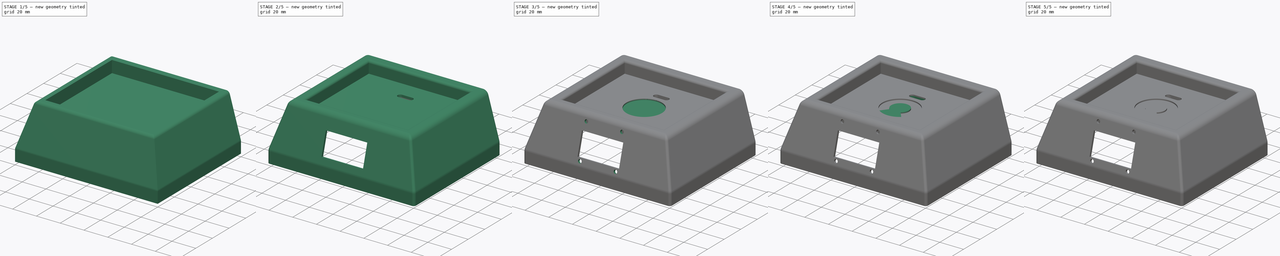
[diagram: build sequence overview — one tinted view per stage of 5, left to right]
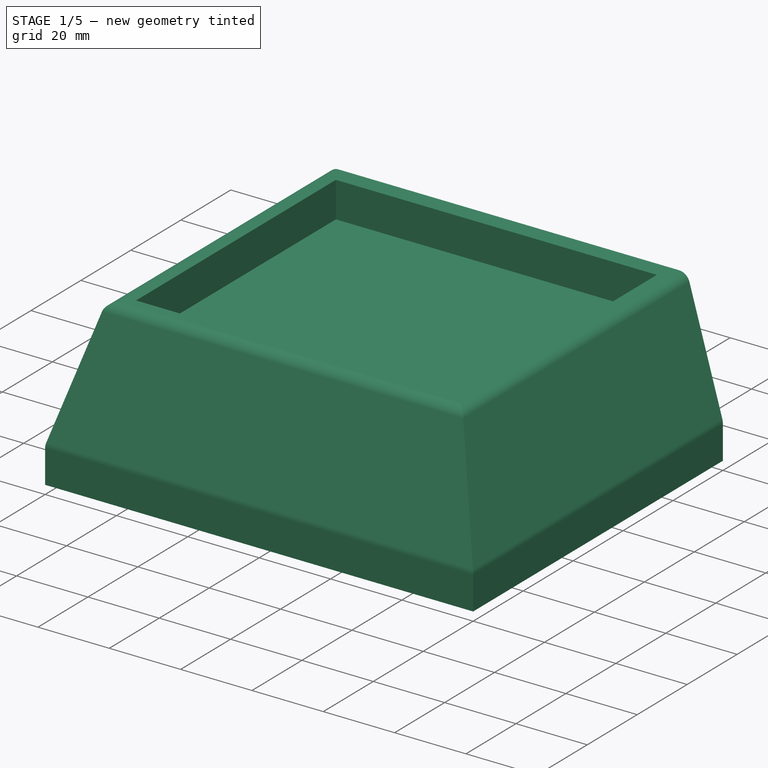
[diagram: stage 1 of 5 — iso view after this stage's code; geometry added in this stage tinted green]
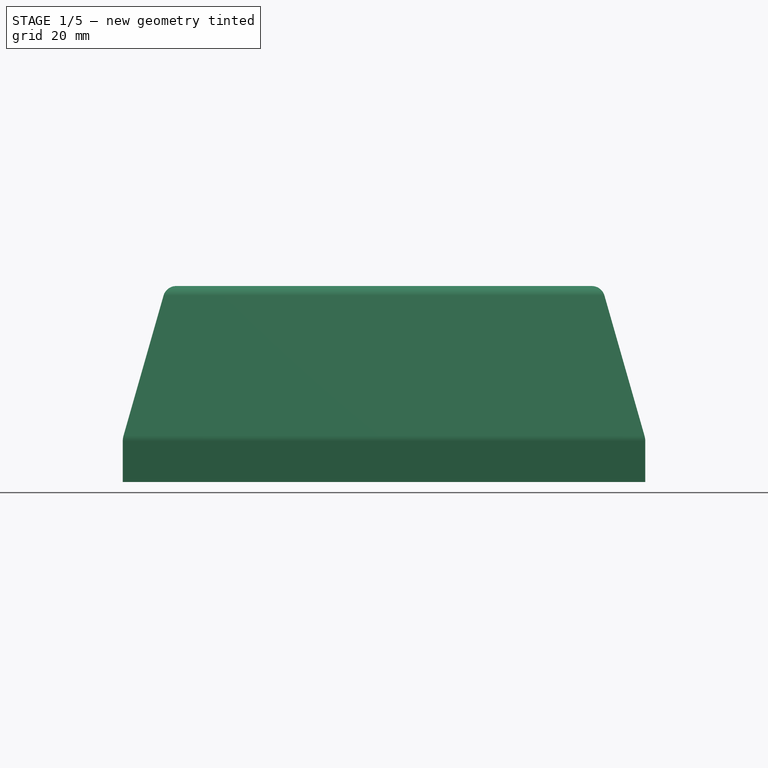
[diagram: stage 1 of 5 — front view after this stage's code; geometry added in this stage tinted green]
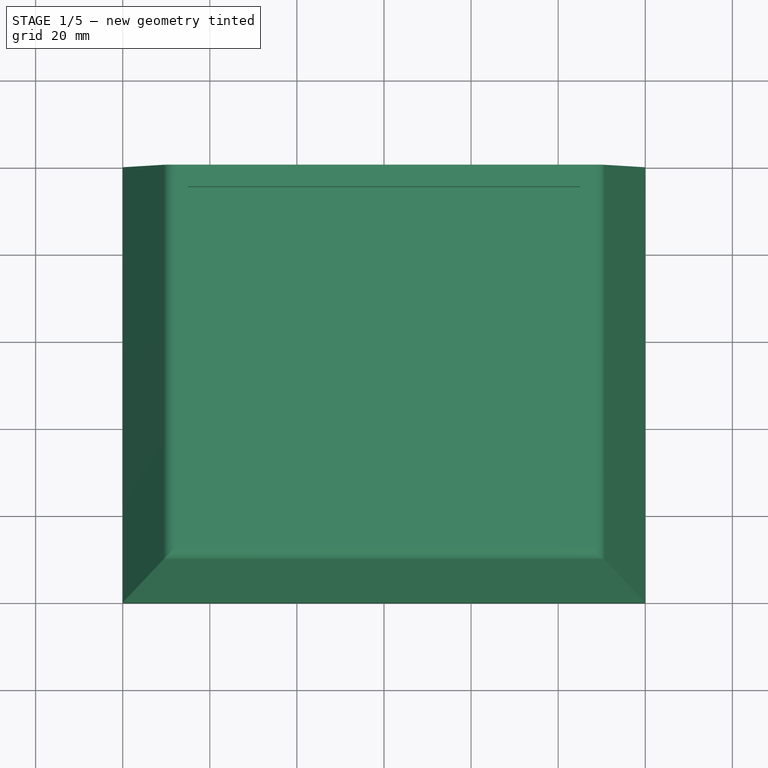
[diagram: stage 1 of 5 — top view after this stage's code; geometry added in this stage tinted green]
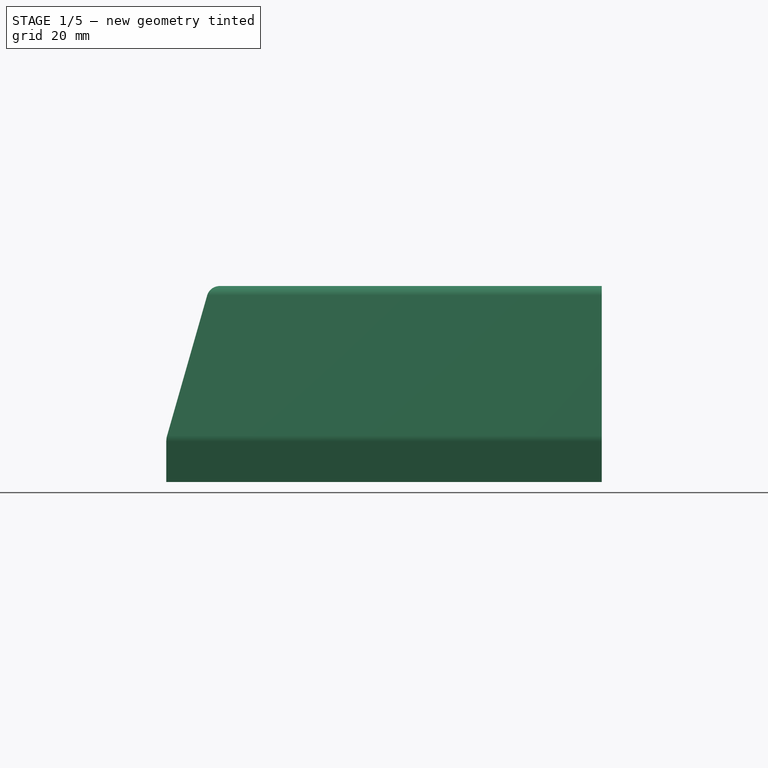
[diagram: stage 1 of 5 — right view after this stage's code; geometry added in this stage tinted green]
FCSTD DOCUMENT  (FreeCAD 0.19R24267 +148 (Git))
Label: top_base_v2
License: All rights reserved
LicenseURL: http://en.wikipedia.org/wiki/All_rights_reserved
objects: Sketcher::SketchObject×19, PartDesign::Pocket×13, PartDesign::Pad×6, PartDesign::Fillet×2, PartDesign::Chamfer×1, PartDesign::Thickness×1, PartDesign::Body×1
note: 66 computed .brp shape members not serialized (recipe doc carries the construction recipe); baked Part::Feature solids carry a one-line shape summary decoded from their .brp

FEATURE [Sketcher::SketchObject] Sketch
  FullyConstrained = true
  MapMode = 5
  Support = -> [XY_Plane]
  sketch-geometry (4):
    g0: LineSegment StartX=0 StartY=0 StartZ=0 EndX=120 EndY=0 EndZ=0
    g1: LineSegment StartX=120 StartY=0 StartZ=0 EndX=120 EndY=-100 EndZ=0
    g2: LineSegment StartX=120 StartY=-100 StartZ=0 EndX=0 EndY=-100 EndZ=0
    g3: LineSegment StartX=0 StartY=-100 StartZ=0 EndX=0 EndY=0 EndZ=0
  constraints (11):
    c: Coincident(g0,g1)
    c: Coincident(g1,g2)
    c: Coincident(g2,g3)
    c: Coincident(g3,g0)
    c: Horizontal(g0)
    c: Horizontal(g2)
    c: Vertical(g1)
    c: Vertical(g3)
    c: Coincident(g0,g-1)
    c: DistanceX(g0,g0) = 120
    c: DistanceY(g3,g3) = 100
FEATURE [PartDesign::Pad] Pad
  Direction = (1,1,1)
  Length = 45
  Length2 = 100
  Profile = -> Sketch
  Type = 0
FEATURE [PartDesign::Chamfer] Chamfer
  Angle = 45
  Base = -> Pad [Edge7,Edge12,Edge10]
  BaseFeature = -> Pad
  ChamferType = 1
  FlipDirection = false
  Size = 35
  Size2 = 10
  SupportTransform = false
FEATURE [Sketcher::SketchObject] Sketch001
  FullyConstrained = false
  MapMode = 5
  Placement = pos=(0,0,45) rot=(0,0,1;0rad)
  Support = -> [Chamfer]
  sketch-geometry (4):
    g0: LineSegment StartX=15 StartY=-5 StartZ=0 EndX=105 EndY=-5 EndZ=0
    g1: LineSegment StartX=105 StartY=-5 StartZ=0 EndX=105 EndY=-85 EndZ=0
    g2: LineSegment StartX=105 StartY=-85 StartZ=0 EndX=15 EndY=-85 EndZ=0
    g3: LineSegment StartX=15 StartY=-85 StartZ=0 EndX=15 EndY=-5 EndZ=0
  constraints (10):
    c: Coincident(g0,g1)
    c: Coincident(g1,g2)
    c: Coincident(g2,g3)
    c: Coincident(g3,g0)
    c: Horizontal(g0)
    c: Horizontal(g2)
    c: Vertical(g1)
    c: Vertical(g3)
    c: DistanceX(g0,g0) = 90
    c: DistanceY(g1,g1) = 80
FEATURE [PartDesign::Pocket] Pocket
  BaseFeature = -> Chamfer
  Length = 10
  Length2 = 100
  Profile = -> Sketch001
  Type = 0
FEATURE [PartDesign::Fillet] Fillet
  Base = -> Pocket [Edge8,Edge23,Edge20]
  BaseFeature = -> Pocket
  Radius = 5
  SupportTransform = false
FEATURE [PartDesign::Fillet] Fillet001
  Base = -> Fillet [Edge21,Edge17,Edge20]
  BaseFeature = -> Fillet
  Radius = 3
  SupportTransform = false
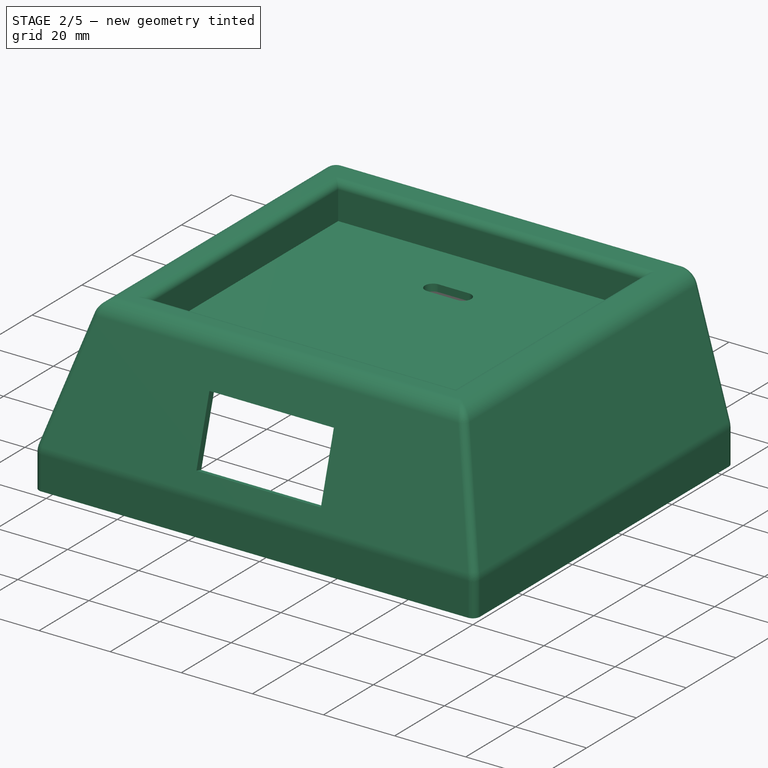
[diagram: stage 2 of 5 — iso view after this stage's code; geometry added in this stage tinted green]
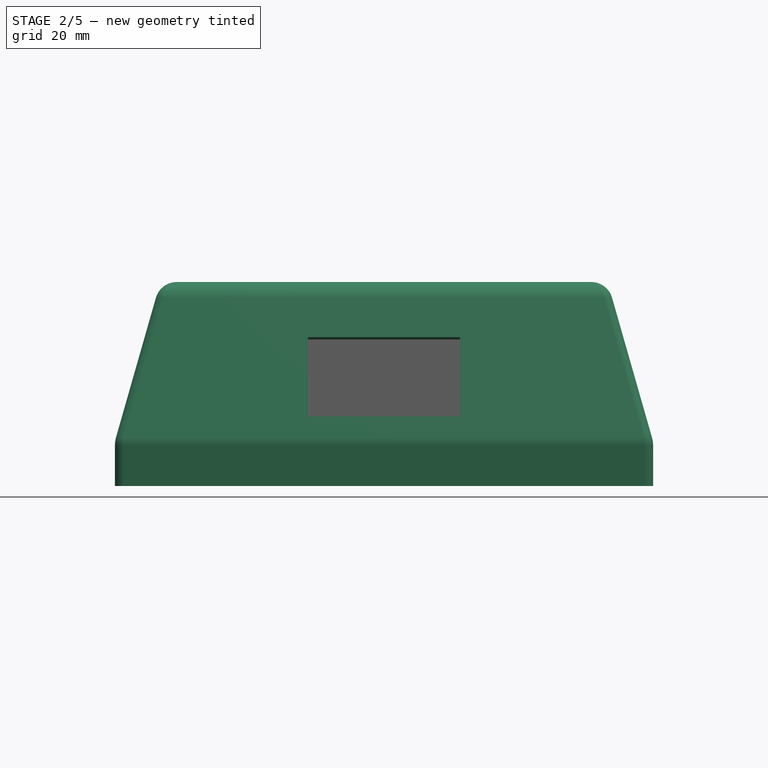
[diagram: stage 2 of 5 — front view after this stage's code; geometry added in this stage tinted green]
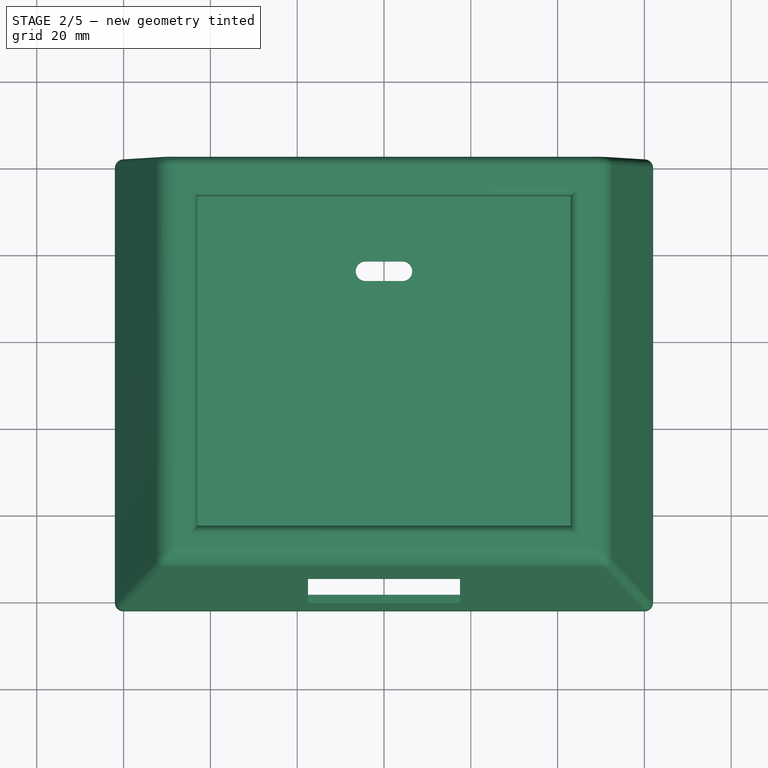
[diagram: stage 2 of 5 — top view after this stage's code; geometry added in this stage tinted green]
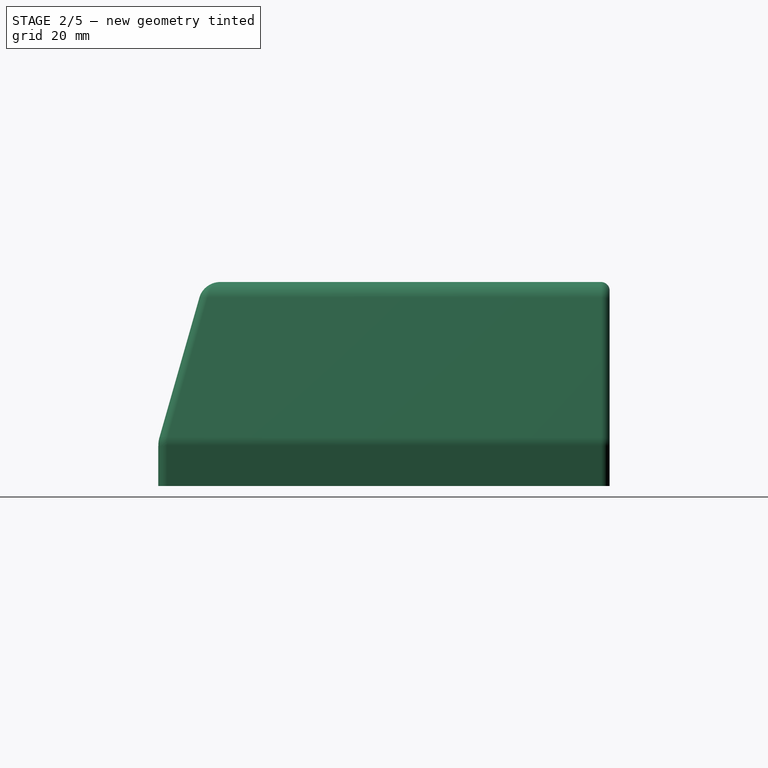
[diagram: stage 2 of 5 — right view after this stage's code; geometry added in this stage tinted green]
FEATURE [PartDesign::Thickness] Thickness
  Base = -> Fillet001 [Face8]
  BaseFeature = -> Fillet001
  Intersection = false
  Join = 0
  Mode = 0
  SupportTransform = false
  Value = 2
FEATURE [Sketcher::SketchObject] Sketch002  label="ecran"
  ExternalGeometry = -> [Fillet001]
  FullyConstrained = false
  MapMode = 5
  Placement = pos=(2.12e-14,-97.0174,27.7193) rot=(1,0,0;1.2925rad)
  Support = -> [Thickness]
  sketch-geometry (4):
    g0: LineSegment StartX=42.5 StartY=6.8434 StartZ=0 EndX=77.5 EndY=6.8434 EndZ=0
    g1: LineSegment StartX=77.5 StartY=6.8434 StartZ=0 EndX=77.5 EndY=-12.1566 EndZ=0
    g2: LineSegment StartX=77.5 StartY=-12.1566 StartZ=0 EndX=42.5 EndY=-12.1566 EndZ=0
    g3: LineSegment StartX=42.5 StartY=-12.1566 StartZ=0 EndX=42.5 EndY=6.8434 EndZ=0
  constraints (12):
    c: Coincident(g0,g1)
    c: Coincident(g1,g2)
    c: Coincident(g2,g3)
    c: Coincident(g3,g0)
    c: Horizontal(g0)
    c: Horizontal(g2)
    c: Vertical(g1)
    c: Vertical(g3)
    c: DistanceX(g0,g0) = 35
    c: DistanceY(g1,g1) = 19
    c: DistanceY(g-3,g-3) = 0
    c: DistanceY(g-4,g1) = 5
FEATURE [PartDesign::Pocket] Pocket001
  BaseFeature = -> Thickness
  Length = 7
  Length2 = 100
  Profile = -> Sketch002
  Type = 2
FEATURE [Sketcher::SketchObject] Sketch003  label="shield"
  ExternalGeometry = -> [Pocket001]
  FullyConstrained = true
  MapMode = 5
  Placement = pos=(0,2,0) rot=(0,0.707107,0.707107;3.14159rad)
  Support = -> [Pocket001]
  sketch-geometry (8):
    g0: LineSegment StartX=-30 StartY=19.5 StartZ=0 EndX=-13.5 EndY=19.5 EndZ=0
    g1: LineSegment StartX=-13.5 StartY=19.5 StartZ=0 EndX=-13.5 EndY=5.5 EndZ=0
    g2: LineSegment StartX=-13.5 StartY=5.5 StartZ=0 EndX=-30 EndY=5.5 EndZ=0
    g3: LineSegment StartX=-30 StartY=5.5 StartZ=0 EndX=-30 EndY=19.5 EndZ=0
    g4: ArcOfCircle CenterX=-97.5 CenterY=20 CenterZ=0 NormalX=0 NormalY=0 NormalZ=1 AngleXU=0 Radius=2 StartAngle=1.5708 EndAngle=4.71239
    g5: ArcOfCircle CenterX=-90.5 CenterY=20 CenterZ=0 NormalX=0 NormalY=0 NormalZ=1 AngleXU=0 Radius=2 StartAngle=4.71239 EndAngle=7.85398
    g6: LineSegment StartX=-97.5 StartY=18 StartZ=0 EndX=-90.5 EndY=18 EndZ=0
    g7: LineSegment StartX=-97.5 StartY=22 StartZ=0 EndX=-90.5 EndY=22 EndZ=0
  constraints (22):
    c: Coincident(g0,g1)
    c: Coincident(g1,g2)
    c: Coincident(g2,g3)
    c: Coincident(g3,g0)
    c: Horizontal(g0)
    c: Horizontal(g2)
    c: Vertical(g1)
    c: Vertical(g3)
    c: Tangent(g4,g7) = 1.5708
    c: Tangent(g4,g6) = -1.5708
    c: Tangent(g6,g5) = -1.5708
    c: Tangent(g7,g5) = 1.5708
    c: Horizontal(g6)
    c: Equal(g4,g5)
    c: DistanceX(g6,g6) = 7
    c: DistanceX(g0,g0) = 16.5
    c: DistanceY(g3,g3) = 14
    c: DistanceY(g5,g5) = 4
    c: DistanceY(g-1,g1) = 5.5
    c: DistanceX(g1,g-1) = 13.5
    c: DistanceX(g-3,g4) = 22.5
    c: DistanceY(g-3,g4) = 18
FEATURE [PartDesign::Pocket] Pocket002
  BaseFeature = -> Pocket001
  Length = 8
  Length2 = 100
  Profile = -> Sketch003
  Type = 0
FEATURE [Sketcher::SketchObject] Sketch004  label="usb c"
  ExternalGeometry = -> [Pocket002]
  FullyConstrained = true
  MapMode = 5
  Placement = pos=(0,0,37) rot=(0,0,1;0rad)
  Support = -> [Pocket002]
  sketch-geometry (4):
    g0: ArcOfCircle CenterX=55.75 CenterY=-24.25 CenterZ=0 NormalX=0 NormalY=0 NormalZ=1 AngleXU=0 Radius=2.25 StartAngle=1.5708 EndAngle=4.71239
    g1: ArcOfCircle CenterX=64.25 CenterY=-24.25 CenterZ=0 NormalX=0 NormalY=0 NormalZ=1 AngleXU=0 Radius=2.25 StartAngle=4.71239 EndAngle=7.85398
    g2: LineSegment StartX=55.75 StartY=-26.5 StartZ=0 EndX=64.25 EndY=-26.5 EndZ=0
    g3: LineSegment StartX=55.75 StartY=-22 StartZ=0 EndX=64.25 EndY=-22 EndZ=0
  constraints (11):
    c: Tangent(g0,g3) = 1.5708
    c: Tangent(g0,g2) = -1.5708
    c: Tangent(g2,g1) = -1.5708
    c: Tangent(g3,g1) = 1.5708
    c: Horizontal(g2)
    c: Equal(g0,g1)
    c: DistanceX(g3,g3) = 8.5
    c: DistanceY(g0,g0) = 4.5
    c: DistanceX(g-3,g0) = 38.75
    c: DistanceX(g-7,g-7) = 86
    c: DistanceY(g0,g-7) = 15
FEATURE [PartDesign::Pocket] Pocket003
  BaseFeature = -> Pocket002
  Length = 20
  Length2 = 100
  Profile = -> Sketch004
  Type = 0
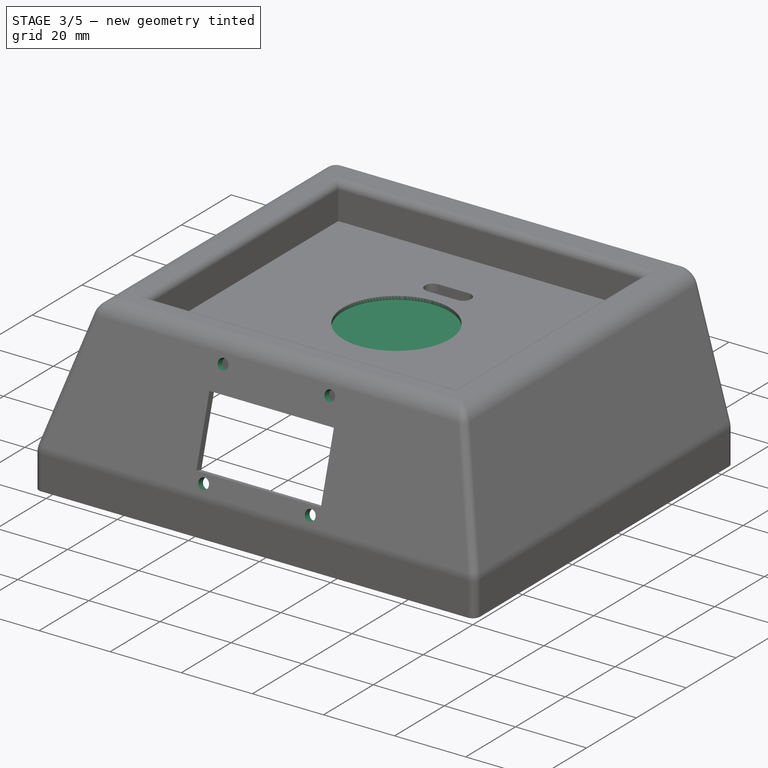
[diagram: stage 3 of 5 — iso view after this stage's code; geometry added in this stage tinted green]
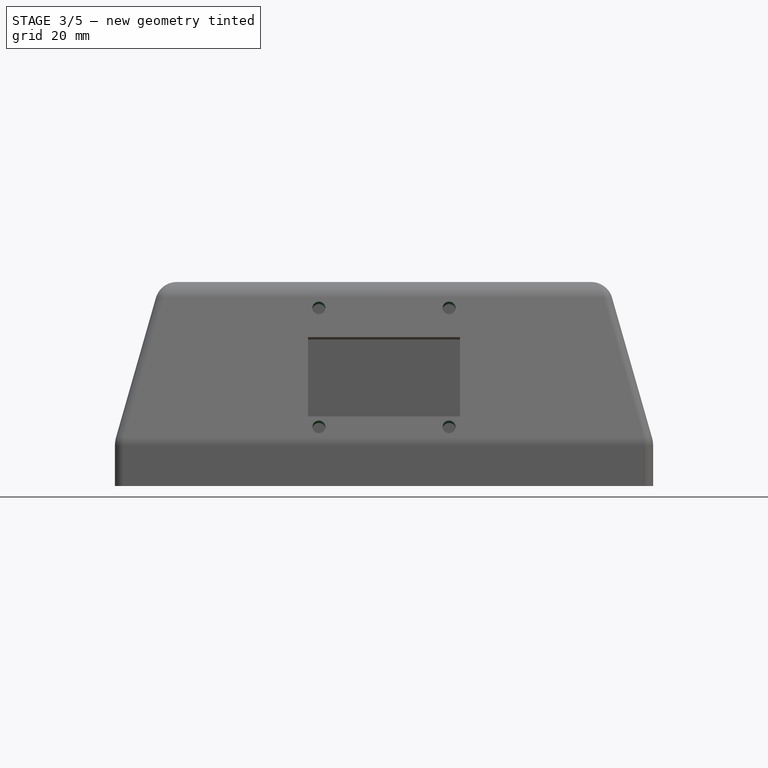
[diagram: stage 3 of 5 — front view after this stage's code; geometry added in this stage tinted green]
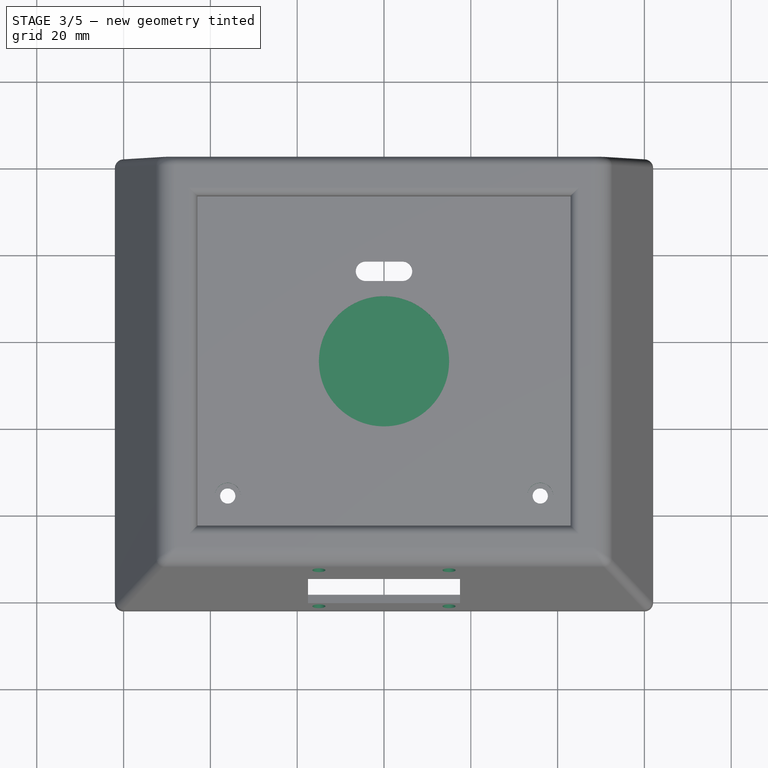
[diagram: stage 3 of 5 — top view after this stage's code; geometry added in this stage tinted green]
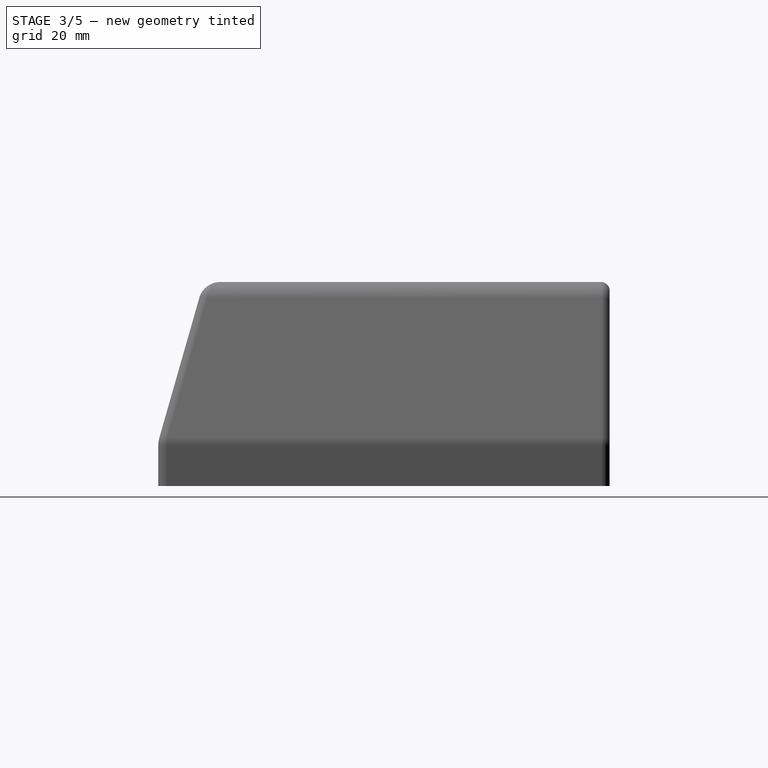
[diagram: stage 3 of 5 — right view after this stage's code; geometry added in this stage tinted green]
FEATURE [Sketcher::SketchObject] Sketch005  label="trou ecran"
  ExternalGeometry = -> [Pocket003]
  FullyConstrained = true
  MapMode = 5
  Placement = pos=(2.12e-14,-97.0174,27.7193) rot=(1,0,0;1.2925rad)
  Support = -> [Pocket003]
  sketch-geometry (4):
    g0: Circle CenterX=45 CenterY=-14.6566 CenterZ=0 NormalX=0 NormalY=0 NormalZ=1 AngleXU=0 Radius=1.5
    g1: Circle CenterX=75 CenterY=-14.6566 CenterZ=0 NormalX=0 NormalY=0 NormalZ=1 AngleXU=0 Radius=1.5
    g2: Circle CenterX=45 CenterY=13.8434 CenterZ=0 NormalX=0 NormalY=0 NormalZ=1 AngleXU=0 Radius=1.5
    g3: Circle CenterX=75 CenterY=13.8434 CenterZ=0 NormalX=0 NormalY=0 NormalZ=1 AngleXU=0 Radius=1.5
  constraints (12):
    c: DistanceX(g0,g1) = 30
    c: DistanceX(g2,g3) = 30
    c: Diameter(g1) = 3
    c: Diameter(g0) = 3
    c: Diameter(g2) = 3
    c: Diameter(g3) = 3
    c: DistanceY(g0,g-4) = 2.5
    c: DistanceY(g1,g-4) = 2.5
    c: DistanceX(g-4,g0) = 2.5
    c: DistanceX(g-5,g2) = 2.5
    c: DistanceY(g-5,g2) = 7
    c: DistanceY(g-5,g3) = 7
FEATURE [Sketcher::SketchObject] Sketch006
  ExternalGeometry = -> [Pocket002]
  FullyConstrained = true
  MapMode = 5
  Placement = pos=(0,0,37) rot=(0,0,1;0rad)
  Support = -> [Pocket002]
  sketch-geometry (2):
    g0: Circle CenterX=24 CenterY=-76 CenterZ=0 NormalX=0 NormalY=0 NormalZ=1 AngleXU=0 Radius=1.75
    g1: Circle CenterX=96 CenterY=-76 CenterZ=0 NormalX=0 NormalY=0 NormalZ=1 AngleXU=0 Radius=1.75
  constraints (6):
    c: Diameter(g0) = 3.5
    c: Diameter(g1) = 3.5
    c: DistanceX(g-3,g0) = 9
    c: DistanceY(g-3,g0) = 9
    c: DistanceX(g1,g-4) = 7
    c: DistanceY(g-4,g1) = 7
FEATURE [PartDesign::Pocket] Pocket004
  BaseFeature = -> Pocket003
  Length = 4
  Length2 = 100
  Profile = -> Sketch005
  Type = 0
FEATURE [Sketcher::SketchObject] Sketch007  label="colonne"
  ExternalGeometry = -> [Pocket004]
  FullyConstrained = false
  MapMode = 5
  Placement = pos=(0,0,35) rot=(1,0,0;3.14159rad)
  sketch-geometry (2):
    g0: Circle CenterX=96 CenterY=76 CenterZ=0 NormalX=0 NormalY=0 NormalZ=1 AngleXU=0 Radius=6
    g1: Circle CenterX=24 CenterY=76 CenterZ=0 NormalX=0 NormalY=0 NormalZ=1 AngleXU=0 Radius=6
  constraints (4):
    c: Diameter(g1) = 12
    c: Diameter(g0) = 12
    c: DistanceX(g-3,g1) = 9
    c: DistanceY(g1,g-3) = 9
FEATURE [PartDesign::Pad] Pad001
  BaseFeature = -> Pocket004
  Direction = (1,1,1)
  Length = 1
  Length2 = 100
  Profile = -> Sketch007
  Type = 0
FEATURE [PartDesign::Pocket] Pocket007
  BaseFeature = -> Pad001
  Length = 5
  Length2 = 100
  Profile = -> Sketch006
  Type = 1
FEATURE [Sketcher::SketchObject] Sketch008
  ExternalGeometry = -> [Pocket007]
  FullyConstrained = true
  MapMode = 5
  Placement = pos=(0,0,37) rot=(0,0,1;0rad)
  Support = -> [Pocket007]
  sketch-geometry (2):
    g0: Circle CenterX=24 CenterY=-76 CenterZ=0 NormalX=0 NormalY=0 NormalZ=1 AngleXU=0 Radius=3
    g1: Circle CenterX=96 CenterY=-76 CenterZ=0 NormalX=0 NormalY=0 NormalZ=1 AngleXU=0 Radius=3
  constraints (6):
    c: Diameter(g1) = 6
    c: Diameter(g0) = 6
    c: DistanceX(g1,g-5) = 7
    c: DistanceY(g-5,g1) = 7
    c: DistanceY(g-5,g0) = 7
    c: DistanceX(g-5,g0) = 7
FEATURE [PartDesign::Pocket] Pocket008
  BaseFeature = -> Pocket007
  Length = 2
  Length2 = 100
  Profile = -> Sketch008
  Type = 0
FEATURE [Sketcher::SketchObject] Sketch009  label="rond"
  ExternalGeometry = -> [Pocket008]
  FullyConstrained = true
  MapMode = 5
  Placement = pos=(0,0,37) rot=(0,0,1;0rad)
  Support = -> [Pocket008]
  sketch-geometry (1):
    g0: Circle CenterX=60 CenterY=-45 CenterZ=0 NormalX=0 NormalY=0 NormalZ=1 AngleXU=0 Radius=15
  constraints (5):
    c: Diameter(g0) = 30
    c: DistanceY(g0,g-5) = 38
    c: DistanceX(g-5,g0) = 43
    c: DistanceY(g-6,g-6) = 76
    c: DistanceX(g-5,g-5) = 86
FEATURE [PartDesign::Pocket] Pocket009
  BaseFeature = -> Pocket008
  Length = 1
  Length2 = 100
  Profile = -> Sketch009
  Type = 0
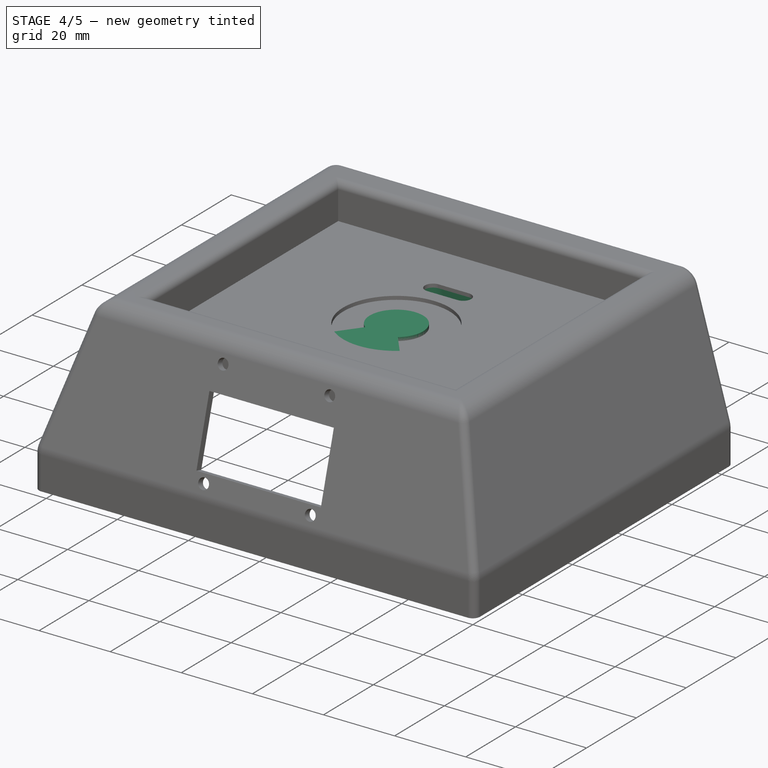
[diagram: stage 4 of 5 — iso view after this stage's code; geometry added in this stage tinted green]
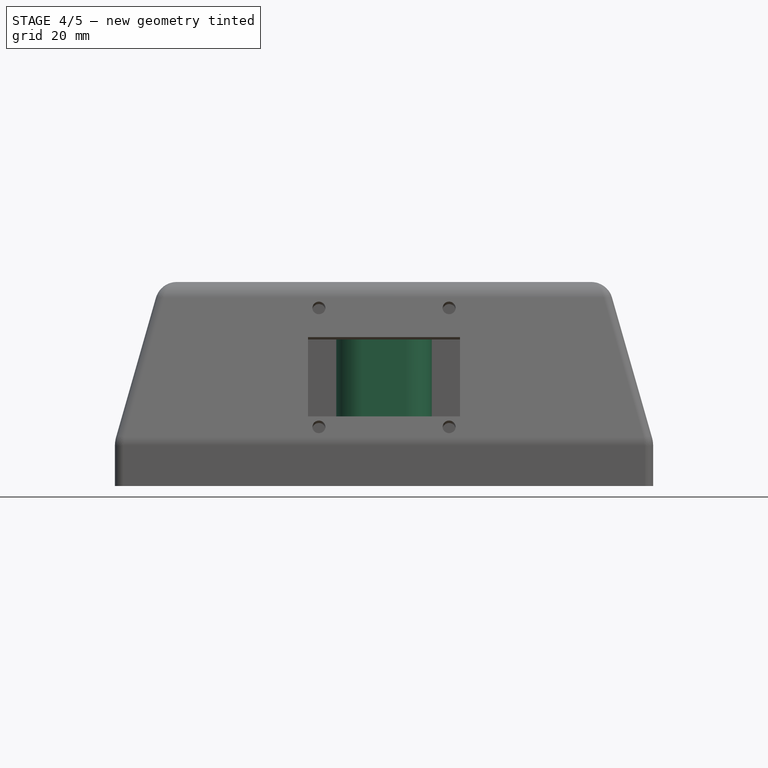
[diagram: stage 4 of 5 — front view after this stage's code; geometry added in this stage tinted green]
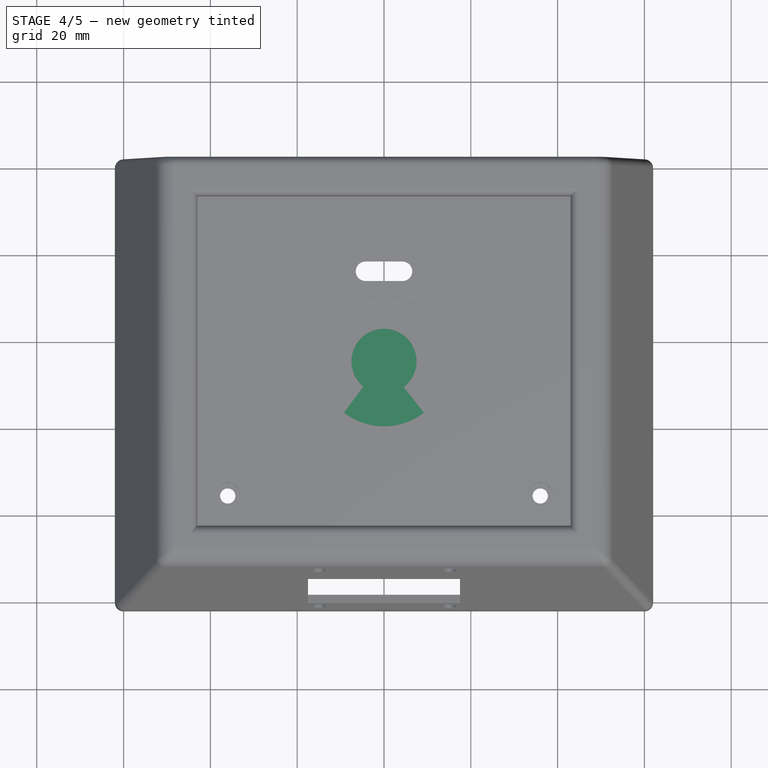
[diagram: stage 4 of 5 — top view after this stage's code; geometry added in this stage tinted green]
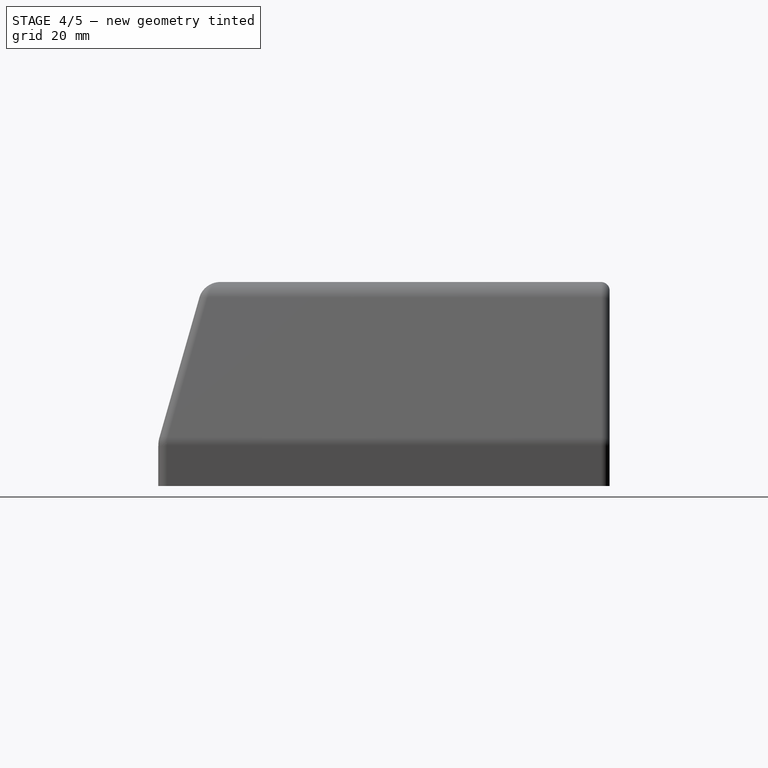
[diagram: stage 4 of 5 — right view after this stage's code; geometry added in this stage tinted green]
FEATURE [Sketcher::SketchObject] Sketch011  label="triangle"
  FullyConstrained = false
  MapMode = 5
  Placement = pos=(0,0,37) rot=(0,0,1;0rad)
  Support = -> [Pocket009]
  sketch-geometry (7):
    g0: LineSegment StartX=60 StartY=-45 StartZ=0 EndX=64.5501 EndY=-50.9621 EndZ=0
    g1: LineSegment StartX=60 StartY=-45 StartZ=0 EndX=55.2539 EndY=-50.8073 EndZ=0
    g2: LineSegment StartX=64.5501 StartY=-50.9621 StartZ=0 EndX=69.1992 EndY=-56.848 EndZ=0
    g3: LineSegment StartX=55.2539 StartY=-50.8073 StartZ=0 EndX=50.779 EndY=-56.831 EndZ=0
    g4: LineSegment StartX=69.1992 StartY=-56.848 StartZ=0 EndX=69.7795 EndY=-57.3991 EndZ=0
    g5: LineSegment StartX=50.779 StartY=-56.831 StartZ=0 EndX=50.3939 EndY=-57.5339 EndZ=0
    g6: ArcOfCircle CenterX=60 CenterY=-45 CenterZ=0 NormalX=0 NormalY=0 NormalZ=1 AngleXU=0 Radius=15.7916 StartAngle=4.05846 EndAngle=5.38022
  constraints (8):
    c: Coincident(g1,g0)
    c: Coincident(g2,g0)
    c: Coincident(g3,g1)
    c: Coincident(g4,g2)
    c: Coincident(g5,g3)
    c: Coincident(g6,g0)
    c: Coincident(g6,g4)
    c: Coincident(g6,g5)
FEATURE [PartDesign::Pad] Pad003
  BaseFeature = -> Pocket009
  Direction = (1,1,1)
  Length = 1
  Length2 = 100
  Profile = -> Sketch011
  Reversed = true
  Type = 0
FEATURE [Sketcher::SketchObject] Sketch014  label="petit rond"
  ExternalGeometry = -> [Pad003]
  FullyConstrained = true
  MapMode = 5
  Placement = pos=(0,0,36) rot=(0,0,1;0rad)
  Support = -> [Pad003]
  sketch-geometry (1):
    g0: Circle CenterX=60 CenterY=-45 CenterZ=0 NormalX=0 NormalY=0 NormalZ=1 AngleXU=0 Radius=7.5
  constraints (2):
    c: Diameter(g0) = 15
    c: Coincident(g0,g-4)
FEATURE [PartDesign::Pad] Pad004
  BaseFeature = -> Pad003
  Direction = (1,1,1)
  Length = 1
  Length2 = 100
  Profile = -> Sketch014
  Type = 0
FEATURE [Sketcher::SketchObject] Sketch016
  ExternalGeometry = -> [Pad004]
  FullyConstrained = true
  MapMode = 5
  Placement = pos=(0,0,35) rot=(1,0,0;3.14159rad)
  Support = -> [Pad004]
  sketch-geometry (4):
    g0: ArcOfCircle CenterX=55 CenterY=24.25 CenterZ=0 NormalX=0 NormalY=0 NormalZ=1 AngleXU=0 Radius=6 StartAngle=1.5708 EndAngle=4.71239
    g1: ArcOfCircle CenterX=65 CenterY=24.25 CenterZ=0 NormalX=0 NormalY=0 NormalZ=1 AngleXU=0 Radius=6 StartAngle=4.71239 EndAngle=7.85398
    g2: LineSegment StartX=55 StartY=18.25 StartZ=0 EndX=65 EndY=18.25 EndZ=0
    g3: LineSegment StartX=55 StartY=30.25 StartZ=0 EndX=65 EndY=30.25 EndZ=0
  constraints (11):
    c: Tangent(g0,g3) = 1.5708
    c: Tangent(g0,g2) = -1.5708
    c: Tangent(g2,g1) = -1.5708
    c: Tangent(g3,g1) = 1.5708
    c: Horizontal(g2)
    c: Equal(g0,g1)
    c: DistanceX(g3,g3) = 10
    c: DistanceY(g0,g0) = 12
    c: DistanceX(g-3,g-3) = 90
    c: DistanceY(g-4,g0) = 0
    c: DistanceX(g0,g-4) = 0.75
FEATURE [PartDesign::Pad] Pad005
  BaseFeature = -> Pad004
  Direction = (1,1,1)
  Length = 19.25
  Length2 = 100
  Profile = -> Sketch016
  Type = 0
FEATURE [Sketcher::SketchObject] Sketch017
  ExternalGeometry = -> [Pad005]
  FullyConstrained = true
  MapMode = 5
  Placement = pos=(0,0,15.75) rot=(1,0,0;3.14159rad)
  Support = -> [Pad005]
  sketch-geometry (4):
    g0: ArcOfCircle CenterX=55.75 CenterY=24.25 CenterZ=0 NormalX=0 NormalY=0 NormalZ=1 AngleXU=0 Radius=3.75 StartAngle=1.5708 EndAngle=4.71239
    g1: ArcOfCircle CenterX=64.25 CenterY=24.25 CenterZ=0 NormalX=0 NormalY=0 NormalZ=1 AngleXU=0 Radius=3.75 StartAngle=4.71239 EndAngle=7.85398
    g2: LineSegment StartX=55.75 StartY=20.5 StartZ=0 EndX=64.25 EndY=20.5 EndZ=0
    g3: LineSegment StartX=55.75 StartY=28 StartZ=0 EndX=64.25 EndY=28 EndZ=0
  constraints (9):
    c: Tangent(g0,g3) = 1.5708
    c: Tangent(g0,g2) = -1.5708
    c: Tangent(g2,g1) = -1.5708
    c: Tangent(g3,g1) = 1.5708
    c: Horizontal(g2)
    c: Equal(g0,g1)
    c: DistanceX(g3,g3) = 8.5
    c: DistanceY(g0,g0) = 7.5
    c: Coincident(g-3,g1)
FEATURE [PartDesign::Pocket] Pocket010
  BaseFeature = -> Pad005
  Length = 20.25
  Length2 = 100
  Profile = -> Sketch017
  Type = 0
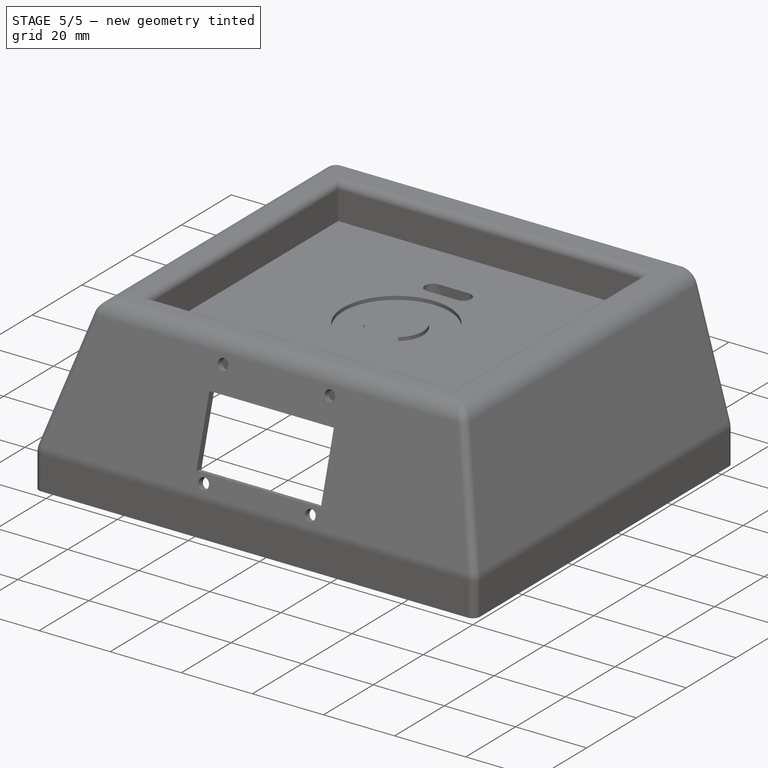
[diagram: stage 5 of 5 — iso view after this stage's code; geometry added in this stage tinted green]
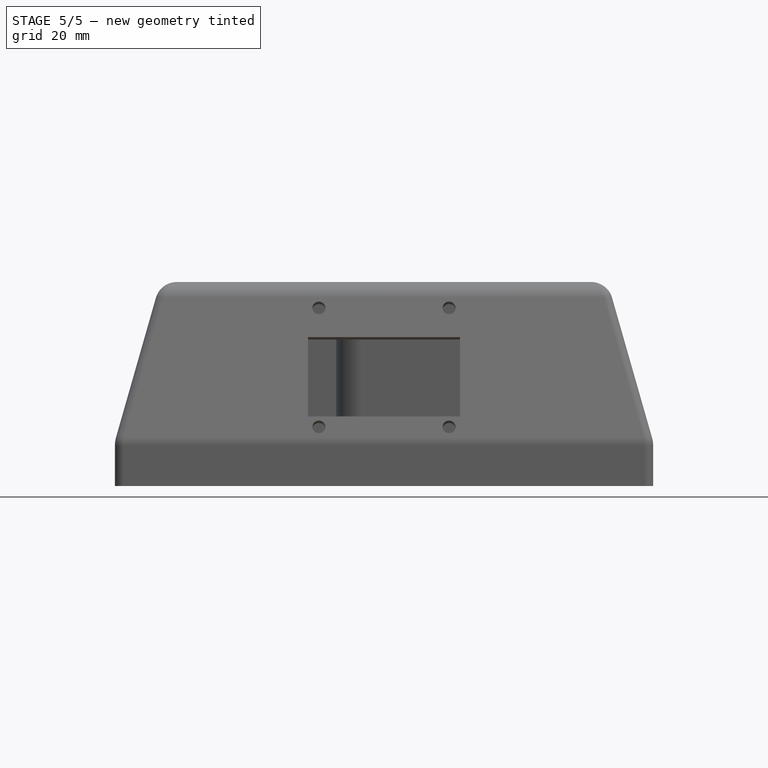
[diagram: stage 5 of 5 — front view after this stage's code; geometry added in this stage tinted green]
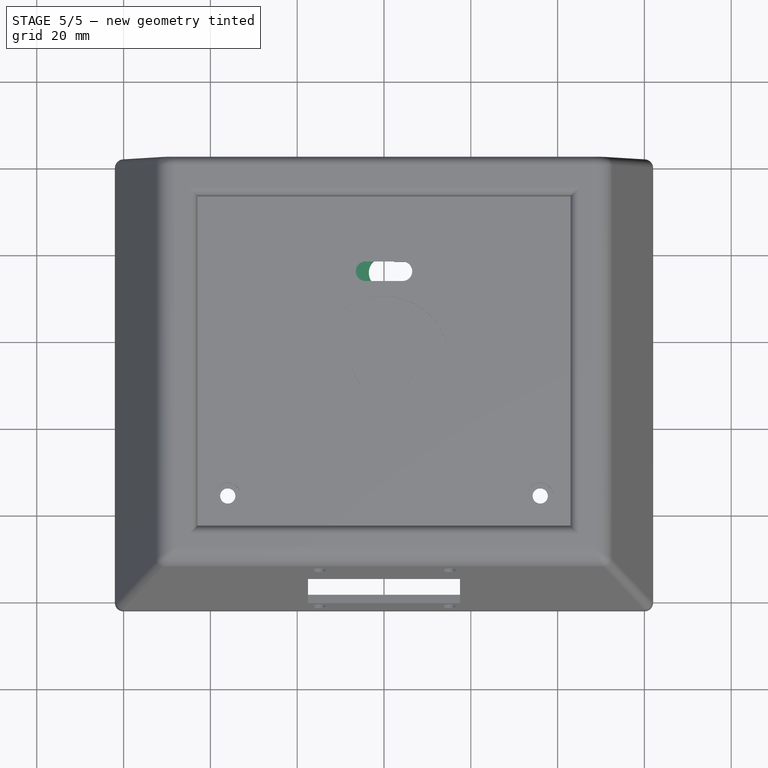
[diagram: stage 5 of 5 — top view after this stage's code; geometry added in this stage tinted green]
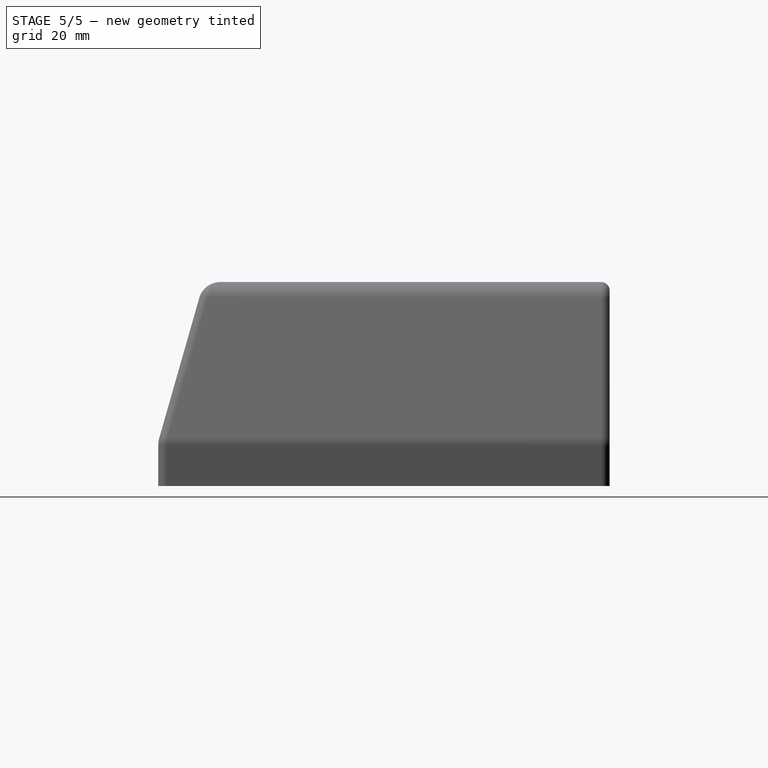
[diagram: stage 5 of 5 — right view after this stage's code; geometry added in this stage tinted green]
FEATURE [Sketcher::SketchObject] Sketch018
  ExternalGeometry = -> [Pocket010]
  FullyConstrained = true
  MapMode = 5
  Placement = pos=(0,0,15.75) rot=(1,0,0;3.14159rad)
  Support = -> [Pocket010]
  sketch-geometry (2):
    g0: ArcOfCircle CenterX=65 CenterY=24.25 CenterZ=0 NormalX=0 NormalY=0 NormalZ=1 AngleXU=0 Radius=6 StartAngle=4.71239 EndAngle=7.85398
    g1: LineSegment StartX=65 StartY=30.25 StartZ=0 EndX=65 EndY=18.25 EndZ=0
  constraints (5):
    c: Coincident(g0,g-5)
    c: Coincident(g0,g-5)
    c: Coincident(g0,g-5)
    c: Coincident(g1,g0)
    c: Coincident(g1,g0)
FEATURE [PartDesign::Pocket] Pocket011
  BaseFeature = -> Pocket010
  Length = 19.25
  Length2 = 100
  Profile = -> Sketch018
  Type = 0
FEATURE [Sketcher::SketchObject] Sketch019
  ExternalGeometry = -> [Pocket011]
  FullyConstrained = true
  MapMode = 5
  Placement = pos=(0,0,15.75) rot=(1,0,0;3.14159rad)
  Support = -> [Pocket011]
  sketch-geometry (4):
    g0: ArcOfCircle CenterX=55 CenterY=24.25 CenterZ=0 NormalX=0 NormalY=0 NormalZ=1 AngleXU=0 Radius=6 StartAngle=1.5708 EndAngle=4.71239
    g1: ArcOfCircle CenterX=65 CenterY=24.25 CenterZ=0 NormalX=0 NormalY=0 NormalZ=1 AngleXU=0 Radius=6 StartAngle=4.71239 EndAngle=7.85398
    g2: LineSegment StartX=55 StartY=18.25 StartZ=0 EndX=65 EndY=18.25 EndZ=0
    g3: LineSegment StartX=55 StartY=30.25 StartZ=0 EndX=65 EndY=30.25 EndZ=0
  constraints (10):
    c: DistanceX(g-5,g-5) = 0
    c: Tangent(g0,g3) = 1.5708
    c: Tangent(g0,g2) = -1.5708
    c: Tangent(g2,g1) = -1.5708
    c: Tangent(g3,g1) = 1.5708
    c: Horizontal(g2)
    c: Equal(g0,g1)
    c: DistanceX(g2,g2) = 10
    c: DistanceY(g1,g1) = 12
    c: Coincident(g0,g-6)
FEATURE [PartDesign::Pad] Pad006
  BaseFeature = -> Pocket011
  Direction = (1,1,1)
  Length = 2
  Length2 = 100
  Profile = -> Sketch019
  Reversed = true
  Type = 0
FEATURE [Sketcher::SketchObject] Sketch020
  ExternalGeometry = -> [Pad006]
  FullyConstrained = true
  MapMode = 5
  Placement = pos=(0,0,15.75) rot=(1,0,0;3.14159rad)
  Support = -> [Pad006]
  sketch-geometry (1):
    g0: Circle CenterX=60 CenterY=24.25 CenterZ=0 NormalX=0 NormalY=0 NormalZ=1 AngleXU=0 Radius=3.5
  constraints (5):
    c: Diameter(g0) = 7
    c: DistanceY(g-4,g-3) = -7.5
    c: DistanceX(g-4,g-4) = 8.5
    c: DistanceY(g0,g-3) = 0
    c: DistanceX(g-3,g0) = 4.25
FEATURE [PartDesign::Pocket] Pocket012
  BaseFeature = -> Pad006
  Length = 4
  Length2 = 100
  Profile = -> Sketch020
  Type = 0
FEATURE [Sketcher::SketchObject] Sketch021
  ExternalGeometry = -> [Pocket012]
  FullyConstrained = true
  MapMode = 5
  Placement = pos=(0,0,15.75) rot=(1,0,0;3.14159rad)
  Support = -> [Pocket012]
  sketch-geometry (4):
    g0: LineSegment StartX=65 StartY=30.25 StartZ=0 EndX=71 EndY=30.25 EndZ=0
    g1: LineSegment StartX=71 StartY=30.25 StartZ=0 EndX=71 EndY=18.25 EndZ=0
    g2: LineSegment StartX=71 StartY=18.25 StartZ=0 EndX=65 EndY=18.25 EndZ=0
    g3: LineSegment StartX=65 StartY=18.25 StartZ=0 EndX=65 EndY=30.25 EndZ=0
  constraints (11):
    c: Coincident(g0,g1)
    c: Coincident(g1,g2)
    c: Coincident(g2,g3)
    c: Coincident(g3,g0)
    c: Horizontal(g0)
    c: Horizontal(g2)
    c: Vertical(g1)
    c: Vertical(g3)
    c: Coincident(g0,g-3)
    c: DistanceY(g3,g3) = 12
    c: DistanceX(g0,g0) = 6
FEATURE [PartDesign::Pocket] Pocket013
  BaseFeature = -> Pocket012
  Length = 5
  Length2 = 100
  Profile = -> Sketch021
  Type = 0
FEATURE [Sketcher::SketchObject] Sketch022
  ExternalGeometry = -> [Pocket013]
  FullyConstrained = false
  MapMode = 5
  Placement = pos=(0,0,15.75) rot=(1,0,0;3.14159rad)
  Support = -> [Pocket013]
  sketch-geometry (4):
    g0: LineSegment StartX=62.0993 StartY=26.75 StartZ=0 EndX=65.6499 EndY=26.75 EndZ=0
    g1: LineSegment StartX=65.6499 StartY=26.75 StartZ=0 EndX=65.6499 EndY=21.75 EndZ=0
    g2: LineSegment StartX=65.6499 StartY=21.75 StartZ=0 EndX=62.0993 EndY=21.75 EndZ=0
    g3: LineSegment StartX=62.0993 StartY=21.75 StartZ=0 EndX=62.0993 EndY=26.75 EndZ=0
  constraints (10):
    c: Coincident(g0,g1)
    c: Coincident(g1,g2)
    c: Coincident(g2,g3)
    c: Coincident(g3,g0)
    c: Horizontal(g0)
    c: Horizontal(g2)
    c: Vertical(g1)
    c: Vertical(g3)
    c: DistanceY(g3,g3) = 5
    c: DistanceY(g0,g-3) = 1.25
FEATURE [PartDesign::Pocket] Pocket014
  BaseFeature = -> Pocket013
  Length = 5
  Length2 = 100
  Profile = -> Sketch022
  Type = 0
FEATURE [PartDesign::Body] Body  label="Corps haut"
  Group = -> [Sketch,Pad,Chamfer,Sketch001,Pocket,Sketch002,Fillet,Fillet001,Thickness,Sketch003,Sketch007,Sketch009,Sketch011,Sketch014,Sketch017,Pocket001,Pocket002,Sketch004,Pocket003,Pocket004,Sketch005,Pad001,Pocket007,Sketch006,Sketch008,Pocket008,Pocket009,Pad003,Pad004,Sketch016,Pad005,Pocket010,Sketch018,Pocket011,Sketch019,Pad006,Sketch020,Pocket012,Sketch021,Pocket013,Sketch022,Pocket014]
  Origin = -> Origin
  Tip = -> Pocket014
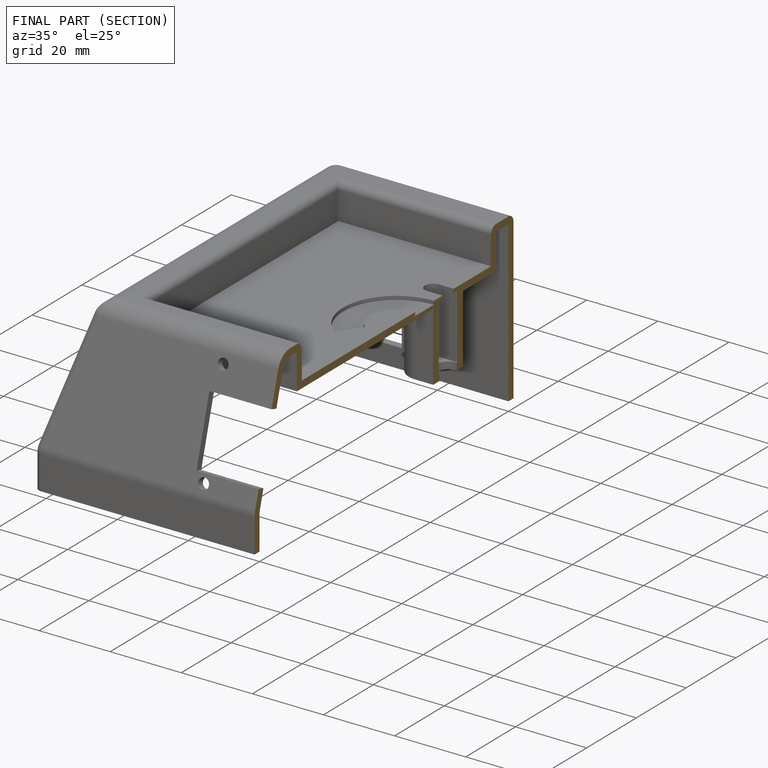
[diagram: finished part — half-section view (interior)]
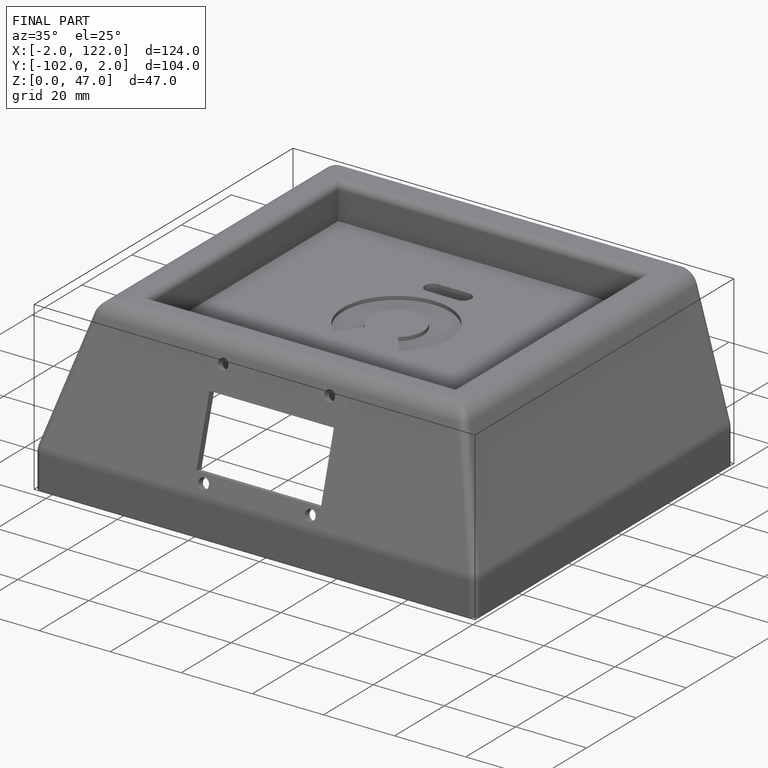
[diagram: finished part — iso view with bounding-box wireframe]
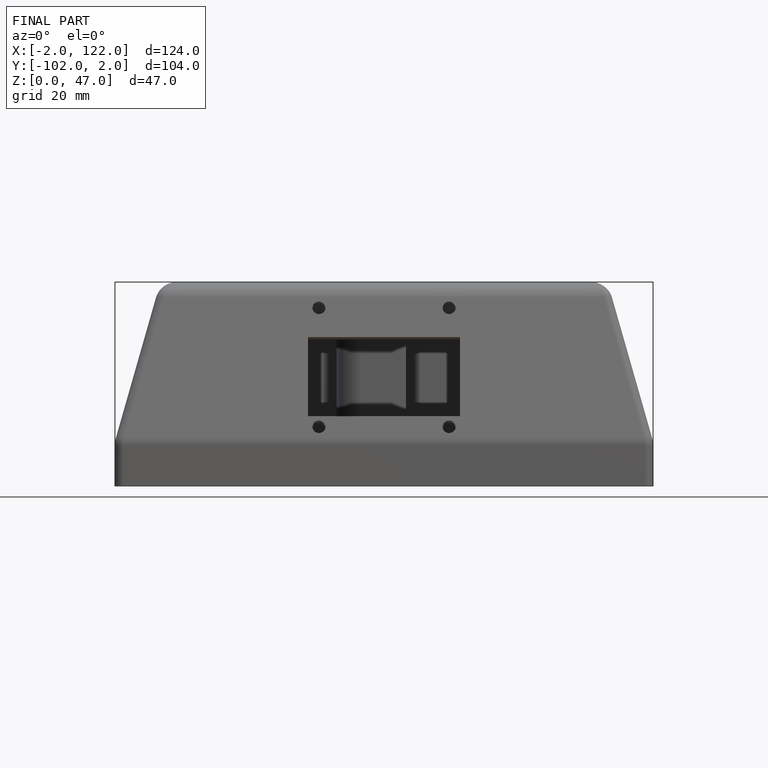
[diagram: finished part — front view with bounding-box wireframe]
